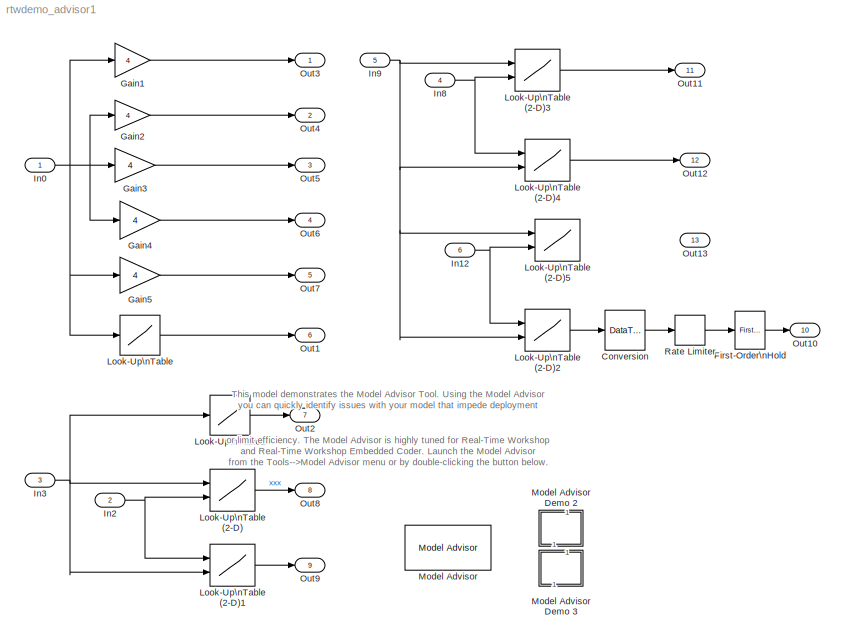
MODEL rtwdemo_advisor1
KIND model
BLOCK [SubSystem]  Model Advisor Demo 2
  MaskDisplay = disp('open')
  MaskIconFrame = on
  MaskIconOpaque = on
  MaskIconRotate = none
  MaskIconUnits = autoscale
  MinAlgLoopOccurrences = off
  OpenFcn = rtwdemo_advisor2
  Ports = []
  PropExecContextAcrossSSBoundary = on
  RTWSystemCode = Auto
  TreatAsAtomicUnit = off
BLOCK [SubSystem]  Model Advisor Demo 3
  MaskDisplay = disp('open')
  MaskIconFrame = on
  MaskIconOpaque = on
  MaskIconRotate = none
  MaskIconUnits = autoscale
  MinAlgLoopOccurrences = off
  OpenFcn = rtwdemo_advisor3
  Ports = []
  PropExecContextAcrossSSBoundary = on
  RTWSystemCode = Auto
  TreatAsAtomicUnit = off
BLOCK [DataTypeConversion] Conversion
  ConvertRealWorld = Stored Integer (SI)
  OutScaling = 2^-10
  RndMeth = Floor
  SaturateOnIntegerOverflow = off
BLOCK [Reference] First-Order\nHold  REF=simulink/Discrete/First-Order\nHold
  DisableCoverage = on
  Ports = [1, 1]
  ShowPortLabels = on
  SourceBlock = simulink/Discrete/First-Order\nHold
  SourceType = First-Order Hold
  Ts = 1
BLOCK [Gain] Gain1
  Gain = 4
  OutScaling = 2^-10
  ParameterScaling = 2^-15
  SaturateOnIntegerOverflow = off
BLOCK [Gain] Gain2
  Gain = 4
  OutScaling = 2^-10
  ParameterDataType = sfix(32)
  ParameterDataTypeMode = Specify via dialog
  ParameterScalingMode = Use specified scaling
BLOCK [Gain] Gain3
  Gain = 4
  OutScaling = 2^-10
  ParameterDataType = sfix(32)
  ParameterDataTypeMode = Specify via dialog
  ParameterScalingMode = Use specified scaling
  SaturateOnIntegerOverflow = off
BLOCK [Gain] Gain4
  Gain = 4
  OutDataType = sfix(32)
  OutScaling = 2^-4
  ParameterDataType = sfix(32)
  ParameterDataTypeMode = Specify via dialog
  ParameterScalingMode = Use specified scaling
  SaturateOnIntegerOverflow = off
BLOCK [Gain] Gain5
  Gain = 4
  OutDataType = sfix(32)
  OutScaling = 2^-3
  ParameterDataType = sfix(32)
  ParameterDataTypeMode = Specify via dialog
  ParameterScalingMode = Use specified scaling
BLOCK [Inport] In0
  DataType = uint8
  IconDisplay = Port number
  Interpolate = off
  LatchInput = off
  OutDataType = sfix(8)
  OutScaling = 2^-4
  Port = 1
BLOCK [Inport] In12
  DataType = uint16
  IconDisplay = Port number
  Interpolate = off
  LatchInput = off
  OutScaling = 2^-10
  Port = 6
BLOCK [Inport] In2
  DataType = uint32
  IconDisplay = Port number
  Interpolate = off
  LatchInput = off
  OutScaling = 2^-10
  Port = 2
BLOCK [Inport] In3
  DataType = uint32
  IconDisplay = Port number
  Interpolate = off
  LatchInput = off
  OutScaling = 2^-10
  Port = 3
BLOCK [Inport] In8
  DataType = uint16
  IconDisplay = Port number
  Interpolate = off
  LatchInput = off
  OutScaling = 2^-10
  Port = 4
BLOCK [Inport] In9
  DataType = uint16
  IconDisplay = Port number
  Interpolate = off
  LatchInput = off
  OutScaling = 2^-10
  Port = 5
BLOCK [Lookup] Look-Up\nTable
  DialogController = Simulink.DDGSource
  InputValues = [0 1 3 7]
  LookUpMeth = Interpolation-Use End Values
  OutDataTypeMode = int16
  OutScaling = 2^-10
  OutputValues = [9 3 9 3]
  RndMeth = Nearest
  SaturateOnIntegerOverflow = off
BLOCK [Lookup2D] Look-Up\nTable (2-D)
  ColumnIndex = [1:3]
  DialogController = Simulink.DDGSource
  InputSameDT = off
  LookUpMeth = Interpolation-Use End Values
  OutScaling = 2^-10
  OutputValues = [4 5 6;16 19 20;10 18 23]
  RowIndex = [1:3]
  SaturateOnIntegerOverflow = off
BLOCK [Lookup2D] Look-Up\nTable (2-D)1
  ColumnIndex = [1:3]
  DialogController = Simulink.DDGSource
  InputSameDT = off
  LookUpMeth = Interpolation-Use End Values
  OutScaling = 2^-10
  OutputValues = [4 5 6;16 19 20;10 18 23]
  RowIndex = [0 2 5]
  SaturateOnIntegerOverflow = off
BLOCK [Lookup2D] Look-Up\nTable (2-D)2
  ColumnIndex = [1 2 7]
  DialogController = Simulink.DDGSource
  InputSameDT = off
  LookUpMeth = Interpolation-Use End Values
  OutDataType = uint16(16)
  OutDataTypeMode = uint32
  OutScaling = 2^-10
  OutputValues = [4 5 6;16 19 20;10 18 23]
  RowIndex = [1:3]
  SaturateOnIntegerOverflow = off
BLOCK [Lookup2D] Look-Up\nTable (2-D)3
  ColumnIndex = [1:3]
  DialogController = Simulink.DDGSource
  InputSameDT = off
  LookUpMeth = Interpolation-Use End Values
  OutScaling = 2^-10
  OutputValues = [4 5 6;16 19 20;10 18 23]
  RowIndex = [1:3]
  SaturateOnIntegerOverflow = off
BLOCK [Lookup2D] Look-Up\nTable (2-D)4
  ColumnIndex = [1 2 3 4 5]
  DialogController = Simulink.DDGSource
  InputSameDT = off
  LookUpMeth = Interpolation-Use End Values
  OutDataTypeMode = uint16
  OutScaling = 2^-10
  OutputValues = ones(3,5)
  RowIndex = [1:3]
  SaturateOnIntegerOverflow = off
BLOCK [Lookup2D] Look-Up\nTable (2-D)5
  ColumnIndex = [1:3]
  DialogController = Simulink.DDGSource
  InputSameDT = off
  LookUpMeth = Interpolation-Use End Values
  OutDataTypeMode = int16
  OutScaling = 2^-10
  OutputValues = ones(3,5).'
  RowIndex = [6 7 8 9 10]
  SaturateOnIntegerOverflow = off
BLOCK [Lookup] Look-Up\nTable1
  DialogController = Simulink.DDGSource
  InputValues = [20 21 22 23 24]
  LookUpMeth = Interpolation-Use End Values
  OutDataTypeMode = uint16
  OutScaling = 2^-10
  OutputValues = [9 3 9 3 9]
  SaturateOnIntegerOverflow = off
BLOCK [Reference] Model Advisor  REF=rtwdemowidgets/Model Advisor
  Ports = []
  ShowPortLabels = on
  SourceBlock = rtwdemowidgets/Model Advisor
  attrib_overrides = {}
BLOCK [Outport] Out1
  BusOutputAsStruct = off
  IconDisplay = Port number
  Port = 6
BLOCK [Outport] Out10
  BusOutputAsStruct = off
  IconDisplay = Port number
  Port = 10
BLOCK [Outport] Out11
  BusOutputAsStruct = off
  IconDisplay = Port number
  Port = 11
BLOCK [Outport] Out12
  BusOutputAsStruct = off
  IconDisplay = Port number
  Port = 12
BLOCK [Outport] Out13
  BusOutputAsStruct = off
  IconDisplay = Port number
  Port = 13
BLOCK [Outport] Out2
  BusOutputAsStruct = off
  IconDisplay = Port number
  Port = 7
BLOCK [Outport] Out3
  BusOutputAsStruct = off
  IconDisplay = Port number
BLOCK [Outport] Out4
  BusOutputAsStruct = off
  IconDisplay = Port number
  Port = 2
BLOCK [Outport] Out5
  BusOutputAsStruct = off
  IconDisplay = Port number
  Port = 3
BLOCK [Outport] Out6
  BusOutputAsStruct = off
  IconDisplay = Port number
  Port = 4
BLOCK [Outport] Out7
  BusOutputAsStruct = off
  IconDisplay = Port number
  Port = 5
BLOCK [Outport] Out8
  BusOutputAsStruct = off
  IconDisplay = Port number
  Port = 8
BLOCK [Outport] Out9
  BusOutputAsStruct = off
  IconDisplay = Port number
  Port = 9
BLOCK [RateLimiter] Rate Limiter
ANNOTATION (root): This model demonstrates the Model Advisor Tool. Using the Model Advisor\nyou can quickly identify issues with your model that impede deployment\nor limit efficiency. The Model Advisor is highly tuned for Real-Time Workshop\nand Real-Time Workshop Embedded Coder. Launch the Model Advisor\nfrom the Tools-->Model Advisor menu or by double-clicking the button below.
LINE Conversion:1 -> Rate Limiter:1
LINE First-Order\nHold:1 -> Out10:1
LINE Gain1:1 -> Out3:1
LINE Gain2:1 -> Out4:1
LINE Gain3:1 -> Out5:1
LINE Gain4:1 -> Out6:1
LINE Gain5:1 -> Out7:1
NET In0:1 -> Gain1:1, Gain2:1, Gain3:1, Gain4:1, Gain5:1, Look-Up\nTable:1
NET In12:1 -> Look-Up\nTable (2-D)2:1, Look-Up\nTable (2-D)5:2
NET In2:1 -> Look-Up\nTable (2-D)1:1, Look-Up\nTable (2-D):2
NET In3:1 -> Look-Up\nTable (2-D)1:2, Look-Up\nTable (2-D):1, Look-Up\nTable1:1
NET In8:1 -> Look-Up\nTable (2-D)3:2, Look-Up\nTable (2-D)4:1
NET In9:1 -> Look-Up\nTable (2-D)2:2, Look-Up\nTable (2-D)3:1, Look-Up\nTable (2-D)4:2, Look-Up\nTable (2-D)5:1
LINE Look-Up\nTable (2-D)1:1 -> Out9:1
LINE Look-Up\nTable (2-D)2:1 -> Conversion:1
LINE Look-Up\nTable (2-D)3:1 -> Out11:1
LINE Look-Up\nTable (2-D)4:1 -> Out12:1
LINE Look-Up\nTable (2-D):1 -> Out8:1
LINE Look-Up\nTable1:1 -> Out2:1
LINE Look-Up\nTable:1 -> Out1:1
LINE Rate Limiter:1 -> First-Order\nHold:1
note: NET lines group one-source signal fan-out (src -> all destinations, sorted); 1:1 wires keep LINE
